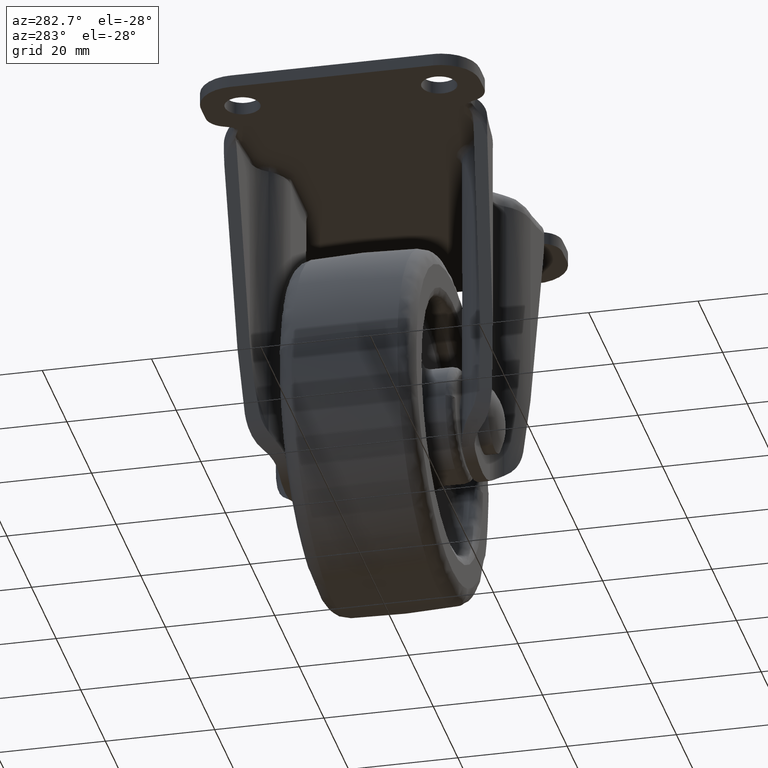
[diagram: clean part render]
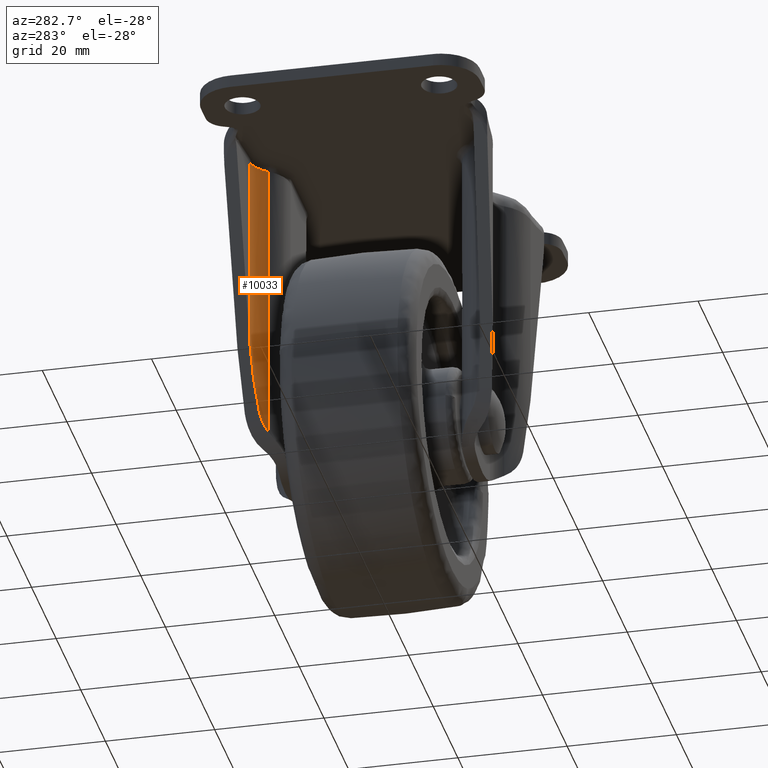
[diagram: same view with one face highlighted and labeled with its STEP entity id]
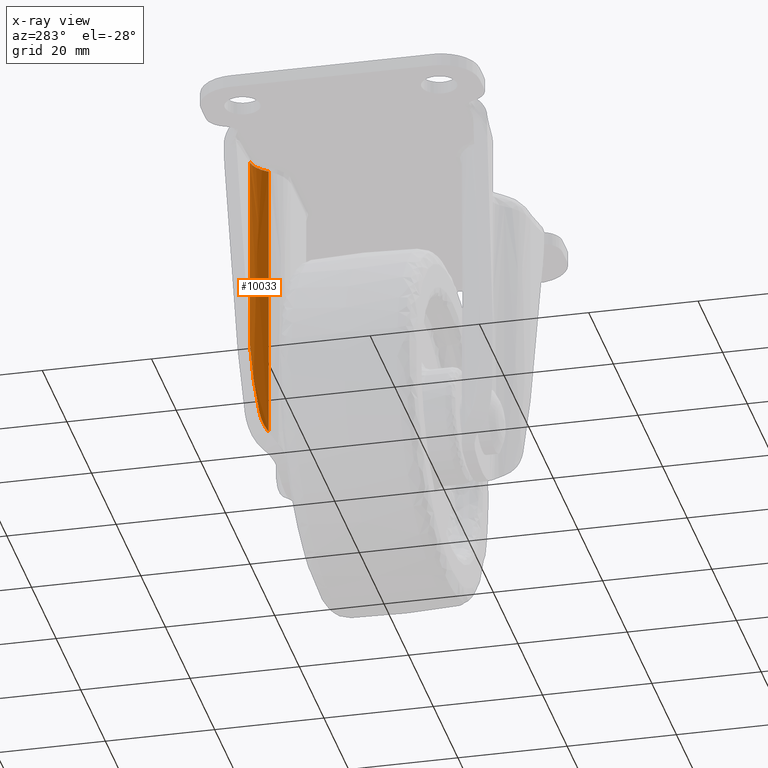
[diagram: x-ray of the same camera — body ghosted, the highlighted face saturated]
A machine part, auxiliary view. The second image highlights one B-rep face of the part: STEP entity #10033.
The next image is the same camera in x-ray: the body ghosted, the highlighted face saturated — about 0% of this face is hidden behind the body in this view.
In plain terms, the highlighted face is a freeform B-spline surface patch.
Its self-contained STEP definition (entity closure, byte-faithful):
#8287=CARTESIAN_POINT('',(-11.351698305530940,18.559972103598199,-3.300000000000000));
#8288=VERTEX_POINT('',#8287);
#8351=CARTESIAN_POINT('',(-15.571400343136450,21.067994115533399,-3.300000000000080));
#8352=VERTEX_POINT('',#8351);
#8381=CARTESIAN_POINT('',(-11.351698305530940,18.559972103598199,-3.300000000000000));
#8382=CARTESIAN_POINT('',(-12.874187462783460,20.802208903518295,-3.300000000000000));
#8383=CARTESIAN_POINT('',(-15.571400343136450,21.067994115533399,-3.300000000000080));
#8391=(BOUNDED_CURVE()B_SPLINE_CURVE(2,(#8381,#8382,#8383),.UNSPECIFIED.,.F.,.U.)CURVE()GEOMETRIC_REPRESENTATION_ITEM()QUASI_UNIFORM_CURVE()RATIONAL_B_SPLINE_CURVE((1.0,0.905585331116308,1.0))REPRESENTATION_ITEM(''));
#8392=EDGE_CURVE('',#8288,#8352,#8391,.T.);
#8972=CARTESIAN_POINT('',(-12.679442000000000,19.947906185789051,-52.419101000000012));
#8973=VERTEX_POINT('',#8972);
#8979=CARTESIAN_POINT('',(-15.571400343136450,21.067994115533399,-39.638644699758402));
#8980=VERTEX_POINT('',#8979);
#8981=CARTESIAN_POINT('',(-12.679442000000000,19.947906185789041,-52.419101000000012));
#8982=CARTESIAN_POINT('',(-13.969642499245655,20.910155455330155,-46.717306872054309));
#8983=CARTESIAN_POINT('',(-15.571400343136450,21.067994115533399,-39.638644699758402));
#8991=(BOUNDED_CURVE()B_SPLINE_CURVE(2,(#8981,#8982,#8983),.UNSPECIFIED.,.F.,.U.)CURVE()GEOMETRIC_REPRESENTATION_ITEM()QUASI_UNIFORM_CURVE()RATIONAL_B_SPLINE_CURVE((1.0,0.963424240528717,1.0))REPRESENTATION_ITEM(''));
#8992=EDGE_CURVE('',#8973,#8980,#8991,.T.);
#9267=CARTESIAN_POINT('',(-11.351697868381320,18.559973353349250,-55.885529447325297));
#9268=VERTEX_POINT('',#9267);
#9298=CARTESIAN_POINT('',(-11.351697868381320,18.559973353349250,-55.885529447325297));
#9299=CARTESIAN_POINT('',(-11.483974194753991,18.754782373744320,-55.648523098649100));
#9300=CARTESIAN_POINT('',(-11.616369308198120,18.924545971560519,-55.393783493630508));
#9301=CARTESIAN_POINT('',(-11.777004938114381,19.112014509589329,-55.055247564973598));
#9302=CARTESIAN_POINT('',(-11.808894298728340,19.148260232632961,-54.986529546964043));
#9303=CARTESIAN_POINT('',(-11.872089946773039,19.218381031698090,-54.847104752475992));
#9304=CARTESIAN_POINT('',(-11.903389691959950,19.252245056874632,-54.776403815067660));
#9305=CARTESIAN_POINT('',(-11.995561662758259,19.349737432669770,-54.563032190565963));
#9306=CARTESIAN_POINT('',(-12.054957065139360,19.409561313004421,-54.418546092472099));
#9307=CARTESIAN_POINT('',(-12.226385713270471,19.575679935525329,-53.978822967516983));
#9308=CARTESIAN_POINT('',(-12.331645826995430,19.668726271703211,-53.677347397107532));
#9309=CARTESIAN_POINT('',(-12.521544487109029,19.827546813557969,-53.059332079059892));
#9310=CARTESIAN_POINT('',(-12.606198720290889,19.893280473004982,-52.742785353674087));
#9311=CARTESIAN_POINT('',(-12.679442000000000,19.947906185789051,-52.419101000000012));
#9312=B_SPLINE_CURVE_WITH_KNOTS('',3,(#9298,#9299,#9300,#9301,#9302,#9303,#9304,#9305,#9306,#9307,#9308,#9309,#9310,#9311),.UNSPECIFIED.,.F.,.U.,(4,2,2,2,2,2,4),(0.0,0.250000000000012,0.312500000000013,0.375000000000013,0.500000000000008,0.750000000000004,1.0),.UNSPECIFIED.);
#9313=EDGE_CURVE('',#9268,#8973,#9312,.T.);
#9999=CARTESIAN_POINT('',(-11.351697868381320,18.559973353349250,-55.885529447325297));
#10000=CARTESIAN_POINT('',(-11.351698305530940,18.559972103598199,-3.300000000000000));
#10001=QUASI_UNIFORM_CURVE('',1,(#9999,#10000),.UNSPECIFIED.,.F.,.U.);
#10002=EDGE_CURVE('',#9268,#8288,#10001,.T.);
#10008=CARTESIAN_POINT('',(-15.814265770468447,21.086773341136226,-57.200167683508425));
#10009=CARTESIAN_POINT('',(-15.814265770468447,21.086773341136226,-1.952495807912285));
#10010=CARTESIAN_POINT('',(-12.805017783646171,20.917707192407239,-57.200167683508454));
#10011=CARTESIAN_POINT('',(-12.805017783646171,20.917707192407239,-1.952495807912286));
#10012=CARTESIAN_POINT('',(-11.218715227106152,18.354935058963747,-57.200167683508440));
#10013=CARTESIAN_POINT('',(-11.218715227106152,18.354935058963747,-1.952495807912285));
#10021=(BOUNDED_SURFACE()B_SPLINE_SURFACE(1,2,((#10008,#10010,#10012),(#10009,#10011,#10013)),.UNSPECIFIED.,.F.,.F.,.U.)B_SPLINE_SURFACE_WITH_KNOTS((2,2),(3,3),(0.0,55.247671875596168),(0.0,5.666664417357728),.UNSPECIFIED.)GEOMETRIC_REPRESENTATION_ITEM()RATIONAL_B_SPLINE_SURFACE(((0.999618444413601,0.885053082376930,0.996221689564292),(0.999618444413601,0.885053082376930,0.996221689564292)))REPRESENTATION_ITEM('')SURFACE());
#10022=ORIENTED_EDGE('',*,*,#10002,.T.);
#10023=ORIENTED_EDGE('',*,*,#8392,.T.);
#10024=CARTESIAN_POINT('',(-15.571400343136450,21.067994115533399,-39.638644699758402));
#10025=CARTESIAN_POINT('',(-15.571400343136450,21.067994115533399,-3.300000000000080));
#10026=QUASI_UNIFORM_CURVE('',1,(#10024,#10025),.UNSPECIFIED.,.F.,.U.);
#10027=EDGE_CURVE('',#8980,#8352,#10026,.T.);
#10028=ORIENTED_EDGE('',*,*,#10027,.F.);
#10029=ORIENTED_EDGE('',*,*,#8992,.F.);
#10030=ORIENTED_EDGE('',*,*,#9313,.F.);
#10031=EDGE_LOOP('',(#10022,#10023,#10028,#10029,#10030));
#10032=FACE_OUTER_BOUND('',#10031,.T.);
#10033=ADVANCED_FACE('',(#10032),#10021,.F.);